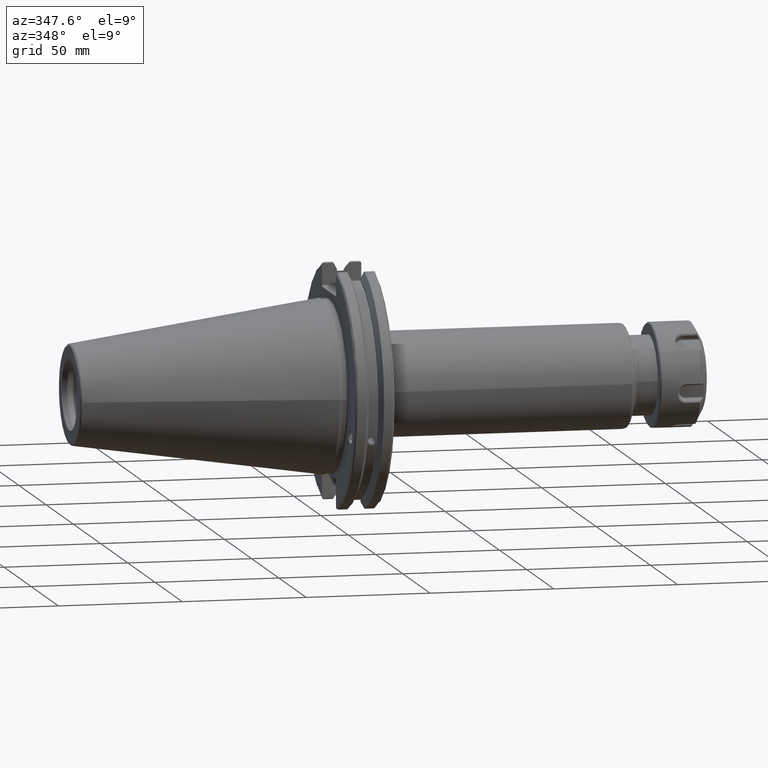
[diagram: clean part render]
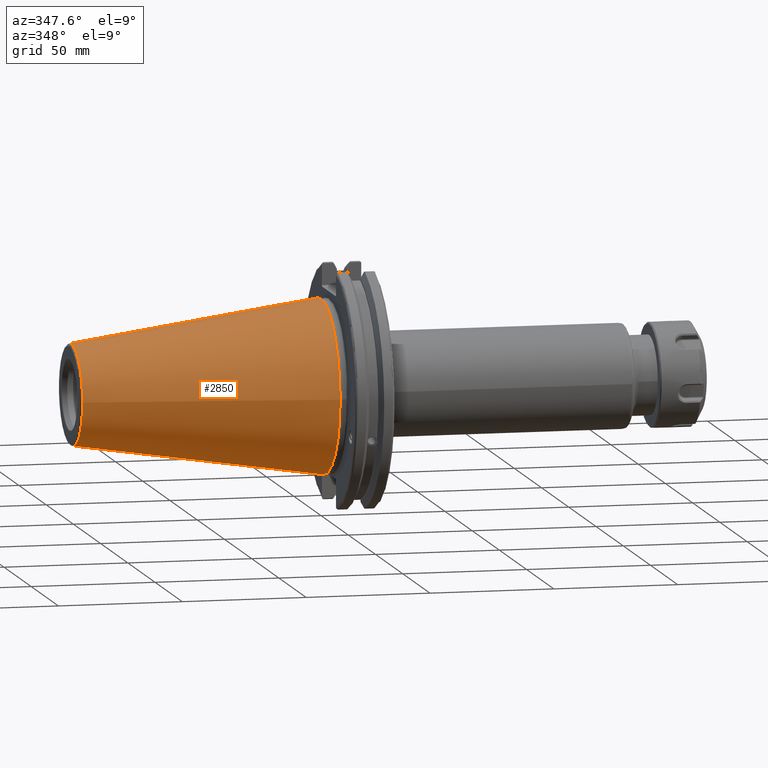
[diagram: same view with one face highlighted and labeled with its STEP entity id]
A machine part, auxiliary view. The second image highlights one B-rep face of the part: STEP entity #2850.
In plain terms, the highlighted conical surface has half-angle 8.297 deg.
Its self-contained STEP definition (entity closure, byte-faithful):
#158=CONICAL_SURFACE('',#3164,27.5166666666666,0.14481249823894);
#350=FACE_OUTER_BOUND('',#538,.T.);
#538=EDGE_LOOP('',(#2208,#2209,#2210,#2211,#2212));
#730=LINE('',#5013,#916);
#916=VECTOR('',#3681,27.5166666666666);
#1093=CIRCLE('',#3158,20.233121911427);
#1094=CIRCLE('',#3159,20.233121911427);
#1098=CIRCLE('',#3165,34.925);
#1305=VERTEX_POINT('',#5000);
#1306=VERTEX_POINT('',#5001);
#1309=VERTEX_POINT('',#5011);
#1638=EDGE_CURVE('',#1305,#1306,#1093,.T.);
#1639=EDGE_CURVE('',#1306,#1305,#1094,.T.);
#1643=EDGE_CURVE('',#1309,#1309,#1098,.T.);
#1644=EDGE_CURVE('',#1309,#1306,#730,.T.);
#2208=ORIENTED_EDGE('',*,*,#1643,.F.);
#2209=ORIENTED_EDGE('',*,*,#1644,.T.);
#2210=ORIENTED_EDGE('',*,*,#1638,.F.);
#2211=ORIENTED_EDGE('',*,*,#1639,.F.);
#2212=ORIENTED_EDGE('',*,*,#1644,.F.);
#2850=ADVANCED_FACE('',(#350),#158,.T.);
#3158=AXIS2_PLACEMENT_3D('',#5002,#3665,#3666);
#3159=AXIS2_PLACEMENT_3D('',#5003,#3667,#3668);
#3164=AXIS2_PLACEMENT_3D('',#5010,#3677,#3678);
#3165=AXIS2_PLACEMENT_3D('',#5012,#3679,#3680);
#3665=DIRECTION('center_axis',(-1.,0.,0.));
#3666=DIRECTION('ref_axis',(0.,-1.,3.06161699786838E-17));
#3667=DIRECTION('center_axis',(-1.,0.,0.));
#3668=DIRECTION('ref_axis',(0.,-1.,3.06161699786838E-17));
#3677=DIRECTION('center_axis',(1.,0.,0.));
#3678=DIRECTION('ref_axis',(0.,1.,0.));
#3679=DIRECTION('center_axis',(1.,0.,0.));
#3680=DIRECTION('ref_axis',(0.,0.,-1.));
#3681=DIRECTION('',(-0.989532981063281,0.144306893071729,1.76724974695192E-17));
#5000=CARTESIAN_POINT('',(-100.744306893072,-2.47784279855872E-15,20.233121911427));
#5001=CARTESIAN_POINT('',(-100.744306893072,-20.233121911427,-2.47784279855872E-15));
#5002=CARTESIAN_POINT('Origin',(-100.744306893072,0.,-3.09730349819841E-15));
#5003=CARTESIAN_POINT('Origin',(-100.744306893072,0.,-3.09730349819841E-15));
#5010=CARTESIAN_POINT('Origin',(-50.8,0.,0.));
#5011=CARTESIAN_POINT('',(-8.88178419700125E-15,-34.925,-4.27707894602213E-15));
#5012=CARTESIAN_POINT('Origin',(0.,0.,0.));
#5013=CARTESIAN_POINT('',(-50.8,-27.5166666666666,-3.3698197756538E-15));